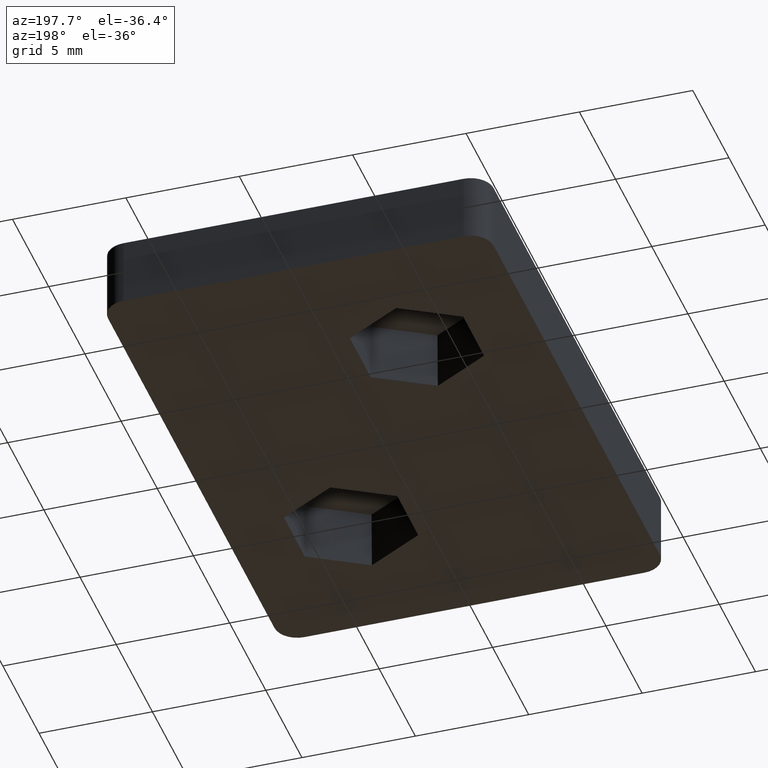
[diagram: clean part render]
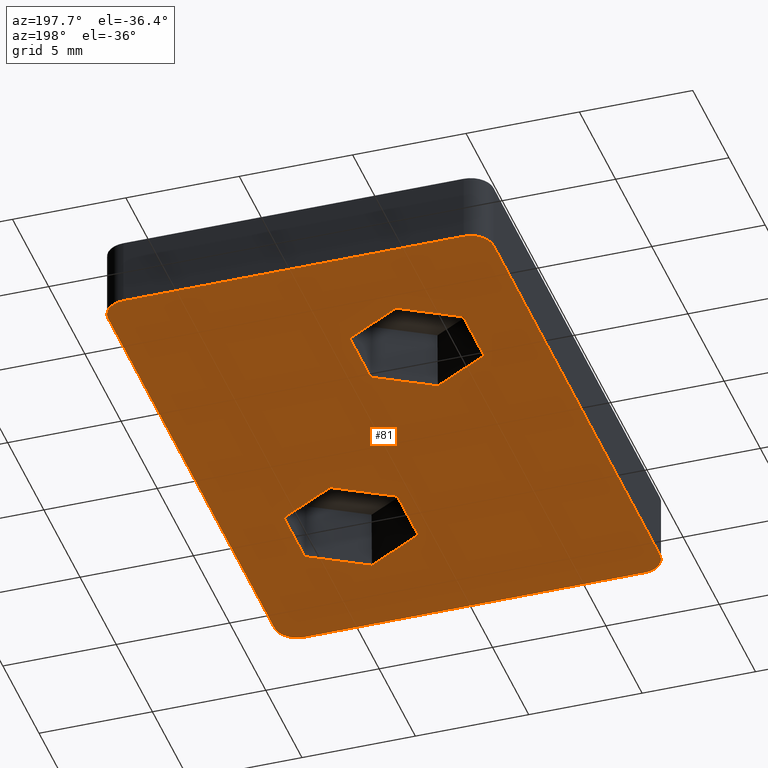
[diagram: same view with one face highlighted and labeled with its STEP entity id]
A machine part, auxiliary view. The second image highlights one B-rep face of the part: STEP entity #81.
In plain terms, the highlighted planar face has unit normal (0, -0, -1).
Its self-contained STEP definition (entity closure, byte-faithful):
#81 = ADVANCED_FACE( '', ( #156, #157, #158 ), #159, .T. );
#156 = FACE_BOUND( '', #289, .T. );
#157 = FACE_BOUND( '', #290, .T. );
#158 = FACE_OUTER_BOUND( '', #291, .T. );
#159 = PLANE( '', #292 );
#289 = EDGE_LOOP( '', ( #479, #480, #481, #482, #483, #484 ) );
#290 = EDGE_LOOP( '', ( #485, #486, #487, #488, #489, #490 ) );
#291 = EDGE_LOOP( '', ( #491, #492, #493, #494, #495, #496, #497, #498 ) );
#292 = AXIS2_PLACEMENT_3D( '', #499, #500, #501 );
#479 = ORIENTED_EDGE( '', *, *, #932, .T. );
#480 = ORIENTED_EDGE( '', *, *, #933, .T. );
#481 = ORIENTED_EDGE( '', *, *, #934, .T. );
#482 = ORIENTED_EDGE( '', *, *, #935, .T. );
#483 = ORIENTED_EDGE( '', *, *, #936, .T. );
#484 = ORIENTED_EDGE( '', *, *, #937, .T. );
#485 = ORIENTED_EDGE( '', *, *, #938, .T. );
#486 = ORIENTED_EDGE( '', *, *, #939, .T. );
#487 = ORIENTED_EDGE( '', *, *, #940, .T. );
#488 = ORIENTED_EDGE( '', *, *, #941, .T. );
#489 = ORIENTED_EDGE( '', *, *, #942, .T. );
#490 = ORIENTED_EDGE( '', *, *, #943, .T. );
#491 = ORIENTED_EDGE( '', *, *, #921, .T. );
#492 = ORIENTED_EDGE( '', *, *, #944, .T. );
#493 = ORIENTED_EDGE( '', *, *, #945, .T. );
#494 = ORIENTED_EDGE( '', *, *, #946, .T. );
#495 = ORIENTED_EDGE( '', *, *, #947, .T. );
#496 = ORIENTED_EDGE( '', *, *, #948, .T. );
#497 = ORIENTED_EDGE( '', *, *, #928, .T. );
#498 = ORIENTED_EDGE( '', *, *, #931, .T. );
#499 = CARTESIAN_POINT( '', ( 19.5000000000000, 5.20417042793042E-015, -3.18653008620906E-031 ) );
#500 = DIRECTION( '', ( 0.000000000000000, -6.12303176911189E-017, -1.00000000000000 ) );
#501 = DIRECTION( '', ( 8.93897586159986E-016, 1.00000000000000, -6.12303176911189E-017 ) );
#921 = EDGE_CURVE( '', #1108, #1106, #1109, .T. );
#928 = EDGE_CURVE( '', #1119, #1120, #1121, .T. );
#931 = EDGE_CURVE( '', #1120, #1108, #1124, .T. );
#932 = EDGE_CURVE( '', #1125, #1126, #1127, .F. );
#933 = EDGE_CURVE( '', #1126, #1128, #1129, .F. );
#934 = EDGE_CURVE( '', #1128, #1130, #1131, .F. );
#935 = EDGE_CURVE( '', #1130, #1132, #1133, .F. );
#936 = EDGE_CURVE( '', #1132, #1134, #1135, .F. );
#937 = EDGE_CURVE( '', #1134, #1125, #1136, .F. );
#938 = EDGE_CURVE( '', #1137, #1138, #1139, .F. );
#939 = EDGE_CURVE( '', #1138, #1140, #1141, .F. );
#940 = EDGE_CURVE( '', #1140, #1142, #1143, .F. );
#941 = EDGE_CURVE( '', #1142, #1144, #1145, .F. );
#942 = EDGE_CURVE( '', #1144, #1146, #1147, .F. );
#943 = EDGE_CURVE( '', #1146, #1137, #1148, .F. );
#944 = EDGE_CURVE( '', #1106, #1149, #1150, .T. );
#945 = EDGE_CURVE( '', #1149, #1151, #1152, .T. );
#946 = EDGE_CURVE( '', #1151, #1153, #1154, .T. );
#947 = EDGE_CURVE( '', #1153, #1155, #1156, .T. );
#948 = EDGE_CURVE( '', #1155, #1119, #1157, .T. );
#1106 = VERTEX_POINT( '', #1384 );
#1108 = VERTEX_POINT( '', #1387 );
#1109 = LINE( '', #1388, #1389 );
#1119 = VERTEX_POINT( '', #1405 );
#1120 = VERTEX_POINT( '', #1406 );
#1121 = LINE( '', #1407, #1408 );
#1124 = CIRCLE( '', #1413, 0.999999999999987 );
#1125 = VERTEX_POINT( '', #1414 );
#1126 = VERTEX_POINT( '', #1415 );
#1127 = LINE( '', #1416, #1417 );
#1128 = VERTEX_POINT( '', #1418 );
#1129 = LINE( '', #1419, #1420 );
#1130 = VERTEX_POINT( '', #1421 );
#1131 = LINE( '', #1422, #1423 );
#1132 = VERTEX_POINT( '', #1424 );
#1133 = LINE( '', #1425, #1426 );
#1134 = VERTEX_POINT( '', #1427 );
#1135 = LINE( '', #1428, #1429 );
#1136 = LINE( '', #1430, #1431 );
#1137 = VERTEX_POINT( '', #1432 );
#1138 = VERTEX_POINT( '', #1433 );
#1139 = LINE( '', #1434, #1435 );
#1140 = VERTEX_POINT( '', #1436 );
#1141 = LINE( '', #1437, #1438 );
#1142 = VERTEX_POINT( '', #1439 );
#1143 = LINE( '', #1440, #1441 );
#1144 = VERTEX_POINT( '', #1442 );
#1145 = LINE( '', #1443, #1444 );
#1146 = VERTEX_POINT( '', #1445 );
#1147 = LINE( '', #1446, #1447 );
#1148 = LINE( '', #1448, #1449 );
#1149 = VERTEX_POINT( '', #1450 );
#1150 = CIRCLE( '', #1451, 1.00000000000000 );
#1151 = VERTEX_POINT( '', #1452 );
#1152 = LINE( '', #1453, #1454 );
#1153 = VERTEX_POINT( '', #1455 );
#1154 = CIRCLE( '', #1456, 1.00000000000000 );
#1155 = VERTEX_POINT( '', #1457 );
#1156 = LINE( '', #1458, #1459 );
#1157 = CIRCLE( '', #1460, 1.00000000000000 );
#1384 = CARTESIAN_POINT( '', ( 7.50000000000001, 12.5000000000000, -7.65378971138986E-016 ) );
#1387 = CARTESIAN_POINT( '', ( -7.50000000000001, 12.5000000000000, -7.65378971138986E-016 ) );
#1388 = CARTESIAN_POINT( '', ( -19.5000000000000, 12.5000000000000, -7.65378971138986E-016 ) );
#1389 = VECTOR( '', #1713, 1000.00000000000 );
#1405 = CARTESIAN_POINT( '', ( -8.50000000000001, -11.5000000000000, 7.04148653447866E-016 ) );
#1406 = CARTESIAN_POINT( '', ( -8.50000000000000, 11.5000000000000, -7.04148653447867E-016 ) );
#1407 = CARTESIAN_POINT( '', ( -8.50000000000000, 5.20417042793042E-015, -3.18653008620906E-031 ) );
#1408 = VECTOR( '', #1720, 1000.00000000000 );
#1413 = AXIS2_PLACEMENT_3D( '', #1723, #1724, #1725 );
#1414 = CARTESIAN_POINT( '', ( -5.75000000000000, 7.07254079757292, -4.33053919918789E-016 ) );
#1415 = CARTESIAN_POINT( '', ( -5.75000000000000, 4.18578945162478, -2.56297217911120E-016 ) );
#1416 = CARTESIAN_POINT( '', ( -5.75000000000000, 2.74241377865072, -1.67918866907285E-016 ) );
#1417 = VECTOR( '', #1726, 1000.00000000000 );
#1418 = CARTESIAN_POINT( '', ( -3.25000000000000, 2.74241377865072, -1.67918866907285E-016 ) );
#1419 = CARTESIAN_POINT( '', ( -3.25000000000000, 2.74241377865072, -1.67918866907285E-016 ) );
#1420 = VECTOR( '', #1727, 1000.00000000000 );
#1421 = CARTESIAN_POINT( '', ( -0.749999999999998, 4.18578945162479, -2.56297217911120E-016 ) );
#1422 = CARTESIAN_POINT( '', ( -3.25000000000000, 2.74241377865072, -1.67918866907285E-016 ) );
#1423 = VECTOR( '', #1728, 1000.00000000000 );
#1424 = CARTESIAN_POINT( '', ( -0.749999999999997, 7.07254079757292, -4.33053919918789E-016 ) );
#1425 = CARTESIAN_POINT( '', ( -0.749999999999999, 2.74241377865072, -1.67918866907285E-016 ) );
#1426 = VECTOR( '', #1729, 1000.00000000000 );
#1427 = CARTESIAN_POINT( '', ( -3.25000000000000, 8.51591647054698, -5.21432270922623E-016 ) );
#1428 = CARTESIAN_POINT( '', ( -0.749999999999998, 7.07254079757292, -4.33053919918789E-016 ) );
#1429 = VECTOR( '', #1730, 1000.00000000000 );
#1430 = CARTESIAN_POINT( '', ( -5.75000000000000, 7.07254079757291, -4.33053919918789E-016 ) );
#1431 = VECTOR( '', #1731, 1000.00000000000 );
#1432 = CARTESIAN_POINT( '', ( 0.750000000000003, -7.07254079757292, 4.33053919918789E-016 ) );
#1433 = CARTESIAN_POINT( '', ( 3.25000000000001, -8.51591647054698, 5.21432270922623E-016 ) );
#1434 = CARTESIAN_POINT( '', ( -6.50000000000000, -2.88675134594813, 1.76756702007669E-016 ) );
#1435 = VECTOR( '', #1732, 1000.00000000000 );
#1436 = CARTESIAN_POINT( '', ( 5.75000000000001, -7.07254079757292, 4.33053919918789E-016 ) );
#1437 = CARTESIAN_POINT( '', ( 3.25000000000000, -8.51591647054699, 5.21432270922624E-016 ) );
#1438 = VECTOR( '', #1733, 1000.00000000000 );
#1439 = CARTESIAN_POINT( '', ( 5.75000000000000, -4.18578945162478, 2.56297217911120E-016 ) );
#1440 = CARTESIAN_POINT( '', ( 5.75000000000000, 2.74241377865073, -1.67918866907286E-016 ) );
#1441 = VECTOR( '', #1734, 1000.00000000000 );
#1442 = CARTESIAN_POINT( '', ( 3.25000000000001, -2.74241377865072, 1.67918866907285E-016 ) );
#1443 = CARTESIAN_POINT( '', ( -4.00000000000000, 1.44337567297406, -8.83783510038344E-017 ) );
#1444 = VECTOR( '', #1735, 1000.00000000000 );
#1445 = CARTESIAN_POINT( '', ( 0.750000000000003, -4.18578945162479, 2.56297217911120E-016 ) );
#1446 = CARTESIAN_POINT( '', ( 0.749999999999999, -4.18578945162479, 2.56297217911120E-016 ) );
#1447 = VECTOR( '', #1736, 1000.00000000000 );
#1448 = CARTESIAN_POINT( '', ( 0.750000000000004, 2.74241377865072, -1.67918866907285E-016 ) );
#1449 = VECTOR( '', #1737, 1000.00000000000 );
#1450 = CARTESIAN_POINT( '', ( 8.50000000000001, 11.5000000000000, -7.04148653447867E-016 ) );
#1451 = AXIS2_PLACEMENT_3D( '', #1738, #1739, #1740 );
#1452 = CARTESIAN_POINT( '', ( 8.50000000000000, -11.5000000000000, 7.04148653447866E-016 ) );
#1453 = CARTESIAN_POINT( '', ( 8.50000000000000, 5.20417042793042E-015, -3.18653008620906E-031 ) );
#1454 = VECTOR( '', #1741, 1000.00000000000 );
#1455 = CARTESIAN_POINT( '', ( 7.50000000000000, -12.5000000000000, 7.65378971138985E-016 ) );
#1456 = AXIS2_PLACEMENT_3D( '', #1742, #1743, #1744 );
#1457 = CARTESIAN_POINT( '', ( -7.50000000000001, -12.5000000000000, 7.65378971138986E-016 ) );
#1458 = CARTESIAN_POINT( '', ( 19.5000000000000, -12.5000000000000, 7.65378971138986E-016 ) );
#1459 = VECTOR( '', #1745, 1000.00000000000 );
#1460 = AXIS2_PLACEMENT_3D( '', #1746, #1747, #1748 );
#1713 = DIRECTION( '', ( 1.00000000000000, 0.000000000000000, 0.000000000000000 ) );
#1720 = DIRECTION( '', ( 2.05990675631064E-032, 1.00000000000000, -6.12303176911189E-017 ) );
#1723 = CARTESIAN_POINT( '', ( -7.50000000000001, 11.5000000000000, -7.04148653447866E-016 ) );
#1724 = DIRECTION( '', ( 0.000000000000000, -6.12303176911189E-017, -1.00000000000000 ) );
#1725 = DIRECTION( '', ( 0.000000000000000, 1.00000000000000, -6.12303176911189E-017 ) );
#1726 = DIRECTION( '', ( -2.77555756156289E-016, 1.00000000000000, -6.12303176911189E-017 ) );
#1727 = DIRECTION( '', ( -0.866025403784439, 0.500000000000000, -3.06151588455594E-017 ) );
#1728 = DIRECTION( '', ( -0.866025403784439, -0.500000000000000, 3.06151588455594E-017 ) );
#1729 = DIRECTION( '', ( -4.99600361081321E-016, -1.00000000000000, 6.12303176911189E-017 ) );
#1730 = DIRECTION( '', ( 0.866025403784439, -0.500000000000000, 3.06151588455594E-017 ) );
#1731 = DIRECTION( '', ( 0.866025403784438, 0.500000000000000, -3.06151588455595E-017 ) );
#1732 = DIRECTION( '', ( -0.866025403784439, 0.500000000000000, -3.06151588455594E-017 ) );
#1733 = DIRECTION( '', ( -0.866025403784439, -0.500000000000000, 3.06151588455594E-017 ) );
#1734 = DIRECTION( '', ( 6.10622663543836E-016, -1.00000000000000, 6.12303176911189E-017 ) );
#1735 = DIRECTION( '', ( 0.866025403784439, -0.500000000000000, 3.06151588455594E-017 ) );
#1736 = DIRECTION( '', ( 0.866025403784439, 0.500000000000000, -3.06151588455594E-017 ) );
#1737 = DIRECTION( '', ( 5.55111512312578E-017, 1.00000000000000, -6.12303176911189E-017 ) );
#1738 = CARTESIAN_POINT( '', ( 7.50000000000001, 11.5000000000000, -7.04148653447867E-016 ) );
#1739 = DIRECTION( '', ( 0.000000000000000, -6.12303176911189E-017, -1.00000000000000 ) );
#1740 = DIRECTION( '', ( 0.000000000000000, 1.00000000000000, -6.12303176911189E-017 ) );
#1741 = DIRECTION( '', ( 1.23259516440783E-032, -1.00000000000000, 6.12303176911189E-017 ) );
#1742 = CARTESIAN_POINT( '', ( 7.50000000000001, -11.5000000000000, 7.04148653447866E-016 ) );
#1743 = DIRECTION( '', ( 0.000000000000000, -6.12303176911189E-017, -1.00000000000000 ) );
#1744 = DIRECTION( '', ( 0.000000000000000, 1.00000000000000, -6.12303176911189E-017 ) );
#1745 = DIRECTION( '', ( -1.00000000000000, 0.000000000000000, 0.000000000000000 ) );
#1746 = CARTESIAN_POINT( '', ( -7.50000000000001, -11.5000000000000, 7.04148653447867E-016 ) );
#1747 = DIRECTION( '', ( 0.000000000000000, -6.12303176911189E-017, -1.00000000000000 ) );
#1748 = DIRECTION( '', ( 0.000000000000000, 1.00000000000000, -6.12303176911189E-017 ) );